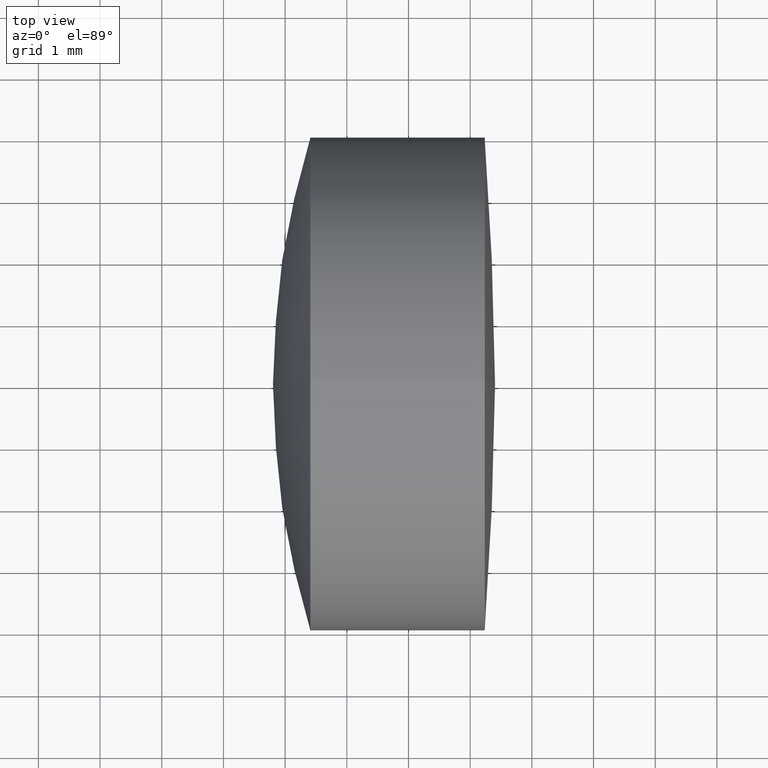
[diagram: clean part render]
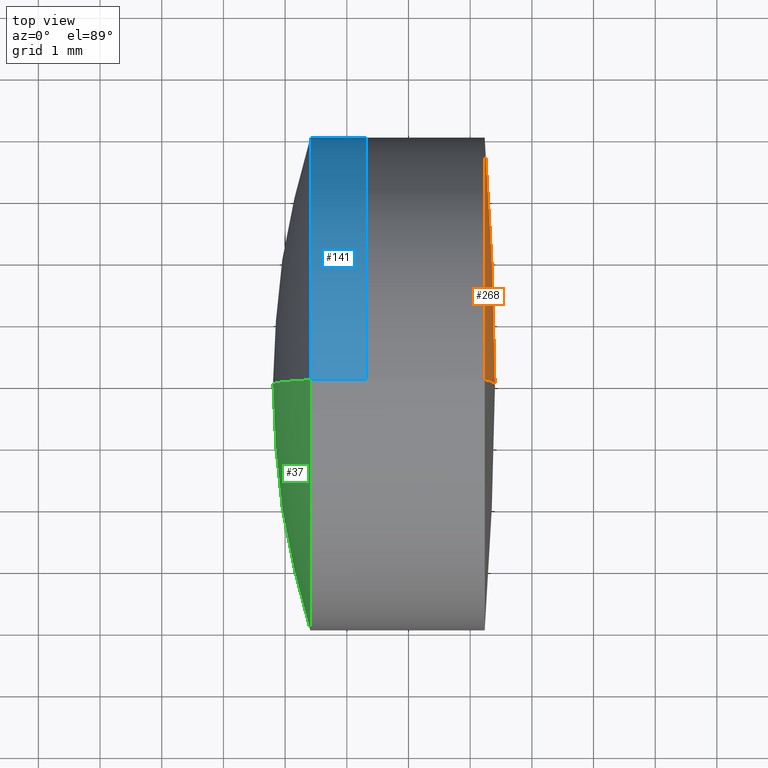
[diagram: same view with three faces highlighted in distinct colors, each labeled with its STEP entity id]
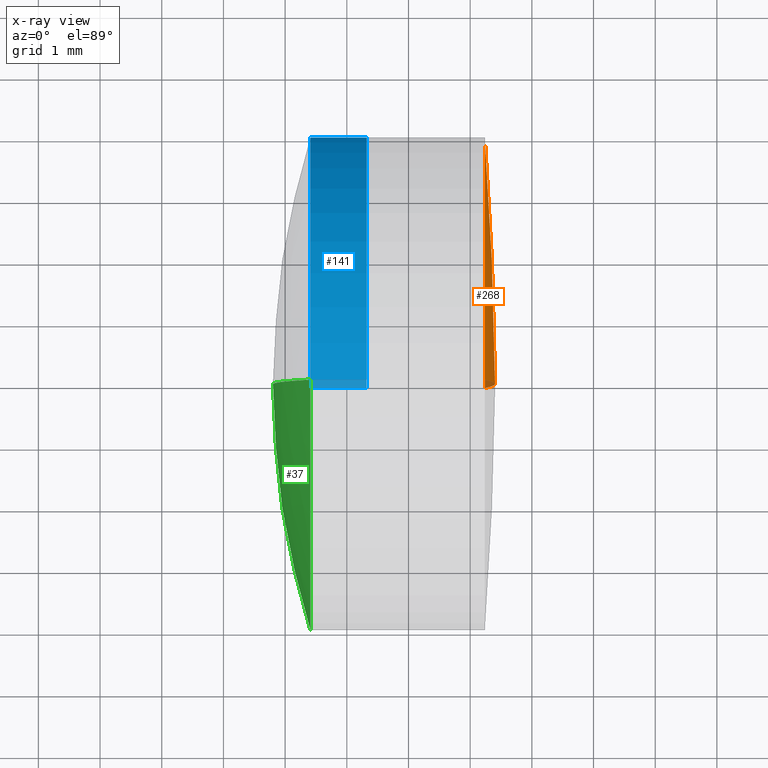
[diagram: x-ray of the same camera — body ghosted, the three highlighted faces saturated]
A machine part, top view with three faces highlighted in distinct colors.
The next image is the same camera in x-ray (body ghosted, the three faces saturated) — at least one of them is partly hidden behind the body in this view.
Their STEP definitions:

[orange] entity #268 — the highlighted spherical surface has radius 47.8 mm.
#8 = CARTESIAN_POINT ( 'NONE',  ( 221.6030744908272800, 0.0000000000000000000, 0.0000000000000000000 ) ) ;
#13 = EDGE_LOOP ( 'NONE', ( #330, #77, #50 ) ) ;
#26 = DIRECTION ( 'NONE',  ( 0.0000000000000000000, 0.0000000000000000000, 1.000000000000000000 ) ) ;
#31 = VERTEX_POINT ( 'NONE', #191 ) ;
#50 = ORIENTED_EDGE ( 'NONE', *, *, #85, .F. ) ;
#61 = DIRECTION ( 'NONE',  ( 0.0000000000000000000, 0.0000000000000000000, 1.000000000000000000 ) ) ;
#72 = CIRCLE ( 'NONE', #319, 47.79999999999996900 ) ;
#77 = ORIENTED_EDGE ( 'NONE', *, *, #183, .T. ) ;
#85 = EDGE_CURVE ( 'NONE', #158, #31, #157, .T. ) ;
#95 = DIRECTION ( 'NONE',  ( -0.0000000000000000000, 1.000000000000000000, 1.224646799147353200E-016 ) ) ;
#111 = DIRECTION ( 'NONE',  ( 0.0000000000000000000, 1.000000000000000000, 0.0000000000000000000 ) ) ;
#129 = CIRCLE ( 'NONE', #288, 47.79999999999996900 ) ;
#131 = SPHERICAL_SURFACE ( 'NONE', #179, 47.79999999999996900 ) ;
#135 = VERTEX_POINT ( 'NONE', #182 ) ;
#140 = EDGE_CURVE ( 'NONE', #135, #158, #129, .T. ) ;
#153 = DIRECTION ( 'NONE',  ( -1.000000000000000000, -0.0000000000000000000, -0.0000000000000000000 ) ) ;
#157 = CIRCLE ( 'NONE', #164, 3.999999999999998200 ) ;
#158 = VERTEX_POINT ( 'NONE', #240 ) ;
#164 = AXIS2_PLACEMENT_3D ( 'NONE', #255, #153, #26 ) ;
#174 = CARTESIAN_POINT ( 'NONE',  ( 221.6030744908272800, 0.0000000000000000000, 0.0000000000000000000 ) ) ;
#179 = AXIS2_PLACEMENT_3D ( 'NONE', #8, #111, #61 ) ;
#182 = CARTESIAN_POINT ( 'NONE',  ( 269.4030744908272400, 0.0000000000000000000, 2.926905849962172200E-015 ) ) ;
#183 = EDGE_CURVE ( 'NONE', #135, #31, #72, .T. ) ;
#191 = CARTESIAN_POINT ( 'NONE',  ( 269.2354164445880500, 4.898587196589410900E-016, -3.999999999999998200 ) ) ;
#240 = CARTESIAN_POINT ( 'NONE',  ( 269.2354164445880500, 0.0000000000000000000, 3.999999999999998200 ) ) ;
#255 = CARTESIAN_POINT ( 'NONE',  ( 269.2354164445880500, 0.0000000000000000000, 0.0000000000000000000 ) ) ;
#258 = CARTESIAN_POINT ( 'NONE',  ( 221.6030744908272800, 0.0000000000000000000, 0.0000000000000000000 ) ) ;
#263 = DIRECTION ( 'NONE',  ( 0.0000000000000000000, -1.000000000000000000, 0.0000000000000000000 ) ) ;
#268 = ADVANCED_FACE ( 'NONE', ( #273 ), #131, .T. ) ;
#273 = FACE_OUTER_BOUND ( 'NONE', #13, .T. ) ;
#288 = AXIS2_PLACEMENT_3D ( 'NONE', #258, #263, #304 ) ;
#304 = DIRECTION ( 'NONE',  ( 0.0000000000000000000, 0.0000000000000000000, -1.000000000000000000 ) ) ;
#312 = DIRECTION ( 'NONE',  ( 0.0000000000000000000, -1.224646799147353200E-016, 1.000000000000000000 ) ) ;
#319 = AXIS2_PLACEMENT_3D ( 'NONE', #174, #95, #312 ) ;
#330 = ORIENTED_EDGE ( 'NONE', *, *, #140, .F. ) ;

[blue] entity #141 — the highlighted cylindrical surface (partial cylindrical patch) has radius 4 mm, axis along (-1, -0, -0).
#5 = FACE_OUTER_BOUND ( 'NONE', #340, .T. ) ;
#11 = CARTESIAN_POINT ( 'NONE',  ( 267.3193874442736700, 0.0000000000000000000, 3.999999999999998200 ) ) ;
#27 = ORIENTED_EDGE ( 'NONE', *, *, #326, .F. ) ;
#43 = ORIENTED_EDGE ( 'NONE', *, *, #202, .T. ) ;
#48 = LINE ( 'NONE', #241, #218 ) ;
#64 = EDGE_CURVE ( 'NONE', #124, #83, #283, .T. ) ;
#73 = DIRECTION ( 'NONE',  ( -1.000000000000000000, -0.0000000000000000000, -0.0000000000000000000 ) ) ;
#83 = VERTEX_POINT ( 'NONE', #324 ) ;
#88 = CARTESIAN_POINT ( 'NONE',  ( 266.4092775325995600, 0.0000000000000000000, 3.999999999999999100 ) ) ;
#97 = CARTESIAN_POINT ( 'NONE',  ( 267.3193874442736700, 0.0000000000000000000, 0.0000000000000000000 ) ) ;
#124 = VERTEX_POINT ( 'NONE', #88 ) ;
#126 = AXIS2_PLACEMENT_3D ( 'NONE', #97, #261, #233 ) ;
#133 = CARTESIAN_POINT ( 'NONE',  ( 266.4092775325995600, 0.0000000000000000000, 0.0000000000000000000 ) ) ;
#141 = ADVANCED_FACE ( 'NONE', ( #5 ), #188, .T. ) ;
#156 = DIRECTION ( 'NONE',  ( -1.000000000000000000, -0.0000000000000000000, -0.0000000000000000000 ) ) ;
#163 = DIRECTION ( 'NONE',  ( 0.0000000000000000000, 0.0000000000000000000, 1.000000000000000000 ) ) ;
#188 = CYLINDRICAL_SURFACE ( 'NONE', #221, 3.999999999999998200 ) ;
#202 = EDGE_CURVE ( 'NONE', #243, #321, #212, .T. ) ;
#204 = DIRECTION ( 'NONE',  ( -1.000000000000000000, -0.0000000000000000000, -0.0000000000000000000 ) ) ;
#211 = CARTESIAN_POINT ( 'NONE',  ( 267.3193874442736700, 4.898587196589410900E-016, -3.999999999999998200 ) ) ;
#212 = CIRCLE ( 'NONE', #126, 3.999999999999998200 ) ;
#217 = EDGE_CURVE ( 'NONE', #321, #83, #325, .T. ) ;
#218 = VECTOR ( 'NONE', #287, 1000.000000000000000 ) ;
#221 = AXIS2_PLACEMENT_3D ( 'NONE', #260, #156, #163 ) ;
#229 = DIRECTION ( 'NONE',  ( 0.0000000000000000000, 0.0000000000000000000, 1.000000000000000000 ) ) ;
#233 = DIRECTION ( 'NONE',  ( 0.0000000000000000000, 0.0000000000000000000, 1.000000000000000000 ) ) ;
#237 = AXIS2_PLACEMENT_3D ( 'NONE', #133, #204, #229 ) ;
#241 = CARTESIAN_POINT ( 'NONE',  ( 124.5233095260452400, 0.0000000000000000000, 3.999999999999998200 ) ) ;
#243 = VERTEX_POINT ( 'NONE', #11 ) ;
#260 = CARTESIAN_POINT ( 'NONE',  ( 124.5233095260452400, 0.0000000000000000000, 0.0000000000000000000 ) ) ;
#261 = DIRECTION ( 'NONE',  ( -1.000000000000000000, -0.0000000000000000000, -0.0000000000000000000 ) ) ;
#271 = ORIENTED_EDGE ( 'NONE', *, *, #217, .T. ) ;
#283 = CIRCLE ( 'NONE', #237, 3.999999999999999100 ) ;
#285 = ORIENTED_EDGE ( 'NONE', *, *, #64, .F. ) ;
#286 = VECTOR ( 'NONE', #73, 1000.000000000000000 ) ;
#287 = DIRECTION ( 'NONE',  ( -1.000000000000000000, -0.0000000000000000000, -0.0000000000000000000 ) ) ;
#321 = VERTEX_POINT ( 'NONE', #211 ) ;
#324 = CARTESIAN_POINT ( 'NONE',  ( 266.4092775325995600, 4.898587196589411800E-016, -4.000000000000000900 ) ) ;
#325 = LINE ( 'NONE', #335, #286 ) ;
#326 = EDGE_CURVE ( 'NONE', #243, #124, #48, .T. ) ;
#335 = CARTESIAN_POINT ( 'NONE',  ( 124.5233095260452400, 4.898587196589410900E-016, -3.999999999999998200 ) ) ;
#340 = EDGE_LOOP ( 'NONE', ( #43, #271, #285, #27 ) ) ;

[green] entity #37 — the highlighted spherical surface has radius 13.5 mm.
#2 = VERTEX_POINT ( 'NONE', #168 ) ;
#17 = EDGE_LOOP ( 'NONE', ( #296, #125, #220 ) ) ;
#22 = DIRECTION ( 'NONE',  ( -1.000000000000000000, -0.0000000000000000000, -0.0000000000000000000 ) ) ;
#35 = EDGE_CURVE ( 'NONE', #83, #2, #90, .T. ) ;
#37 = ADVANCED_FACE ( 'NONE', ( #75 ), #331, .T. ) ;
#39 = DIRECTION ( 'NONE',  ( 0.0000000000000000000, 0.0000000000000000000, -1.000000000000000000 ) ) ;
#42 = CARTESIAN_POINT ( 'NONE',  ( 266.4092775325995600, 0.0000000000000000000, 0.0000000000000000000 ) ) ;
#74 = CARTESIAN_POINT ( 'NONE',  ( 279.3030744908272700, 0.0000000000000000000, -1.429446538153924700E-015 ) ) ;
#75 = FACE_OUTER_BOUND ( 'NONE', #17, .T. ) ;
#83 = VERTEX_POINT ( 'NONE', #324 ) ;
#88 = CARTESIAN_POINT ( 'NONE',  ( 266.4092775325995600, 0.0000000000000000000, 3.999999999999999100 ) ) ;
#90 = CIRCLE ( 'NONE', #165, 13.50000000000004800 ) ;
#99 = AXIS2_PLACEMENT_3D ( 'NONE', #113, #112, #201 ) ;
#112 = DIRECTION ( 'NONE',  ( 0.0000000000000000000, 1.000000000000000000, 0.0000000000000000000 ) ) ;
#113 = CARTESIAN_POINT ( 'NONE',  ( 279.3030744908272700, 0.0000000000000000000, -1.429446538153924700E-015 ) ) ;
#124 = VERTEX_POINT ( 'NONE', #88 ) ;
#125 = ORIENTED_EDGE ( 'NONE', *, *, #150, .T. ) ;
#147 = AXIS2_PLACEMENT_3D ( 'NONE', #74, #320, #39 ) ;
#148 = CARTESIAN_POINT ( 'NONE',  ( 279.3030744908272700, 0.0000000000000000000, -1.429446538153924700E-015 ) ) ;
#150 = EDGE_CURVE ( 'NONE', #83, #124, #239, .T. ) ;
#165 = AXIS2_PLACEMENT_3D ( 'NONE', #148, #332, #176 ) ;
#168 = CARTESIAN_POINT ( 'NONE',  ( 265.8030744908271600, 0.0000000000000000000, -6.028099487294583000E-016 ) ) ;
#176 = DIRECTION ( 'NONE',  ( 0.0000000000000000000, -1.224646799147353200E-016, 1.000000000000000000 ) ) ;
#199 = CIRCLE ( 'NONE', #147, 13.50000000000004800 ) ;
#201 = DIRECTION ( 'NONE',  ( 0.0000000000000000000, 0.0000000000000000000, 1.000000000000000000 ) ) ;
#205 = DIRECTION ( 'NONE',  ( 0.0000000000000000000, 0.0000000000000000000, 1.000000000000000000 ) ) ;
#216 = AXIS2_PLACEMENT_3D ( 'NONE', #42, #22, #205 ) ;
#220 = ORIENTED_EDGE ( 'NONE', *, *, #232, .T. ) ;
#232 = EDGE_CURVE ( 'NONE', #124, #2, #199, .T. ) ;
#239 = CIRCLE ( 'NONE', #216, 3.999999999999999100 ) ;
#296 = ORIENTED_EDGE ( 'NONE', *, *, #35, .F. ) ;
#320 = DIRECTION ( 'NONE',  ( 0.0000000000000000000, -1.000000000000000000, 0.0000000000000000000 ) ) ;
#324 = CARTESIAN_POINT ( 'NONE',  ( 266.4092775325995600, 4.898587196589411800E-016, -4.000000000000000900 ) ) ;
#331 = SPHERICAL_SURFACE ( 'NONE', #99, 13.50000000000004800 ) ;
#332 = DIRECTION ( 'NONE',  ( -0.0000000000000000000, 1.000000000000000000, 1.224646799147353200E-016 ) ) ;